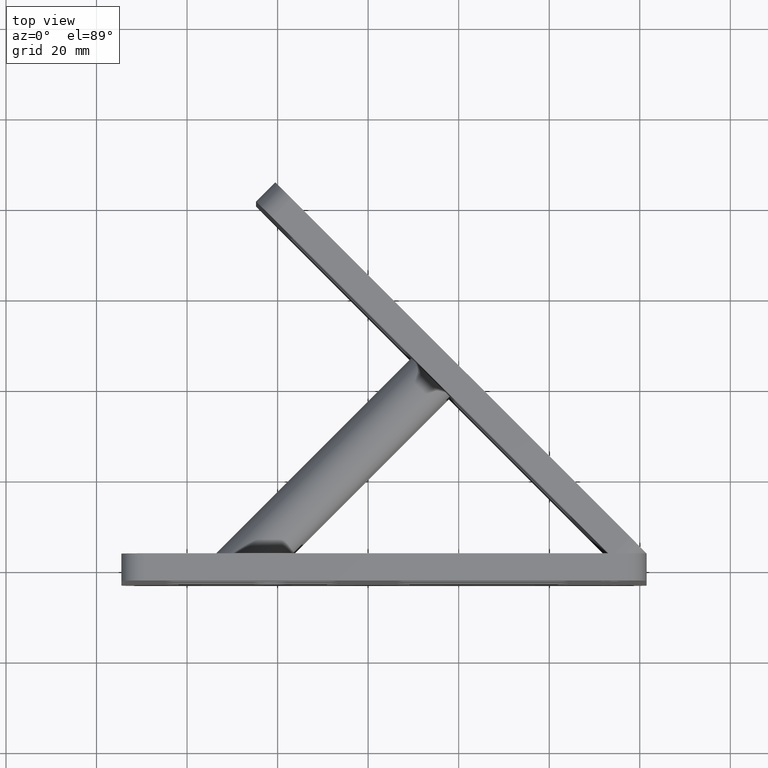
[diagram: clean part render]
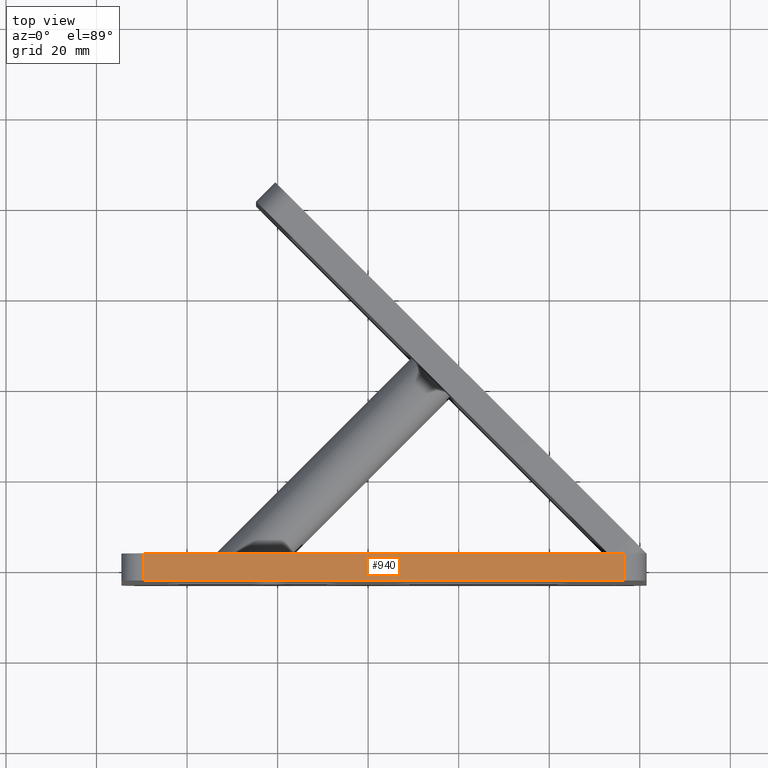
[diagram: same view with one face highlighted and labeled with its STEP entity id]
A machine part, top view. The second image highlights one B-rep face of the part: STEP entity #940.
In plain terms, the highlighted planar face has unit normal (0, 0, -1).
Its self-contained STEP definition (entity closure, byte-faithful):
#101 = LINE ( 'NONE', #4508, #5703 ) ;
#557 = VECTOR ( 'NONE', #4373, 1000.000000000000000 ) ;
#655 = EDGE_CURVE ( 'NONE', #4932, #5748, #6596, .T. ) ;
#658 = ORIENTED_EDGE ( 'NONE', *, *, #655, .F. ) ;
#791 = ORIENTED_EDGE ( 'NONE', *, *, #1923, .T. ) ;
#819 = DIRECTION ( 'NONE',  ( -0.0000000000000000000, -1.000000000000000000, -0.0000000000000000000 ) ) ;
#876 = CARTESIAN_POINT ( 'NONE',  ( 56.50000000000012100, 3.000000000000000000, 35.00000000000001400 ) ) ;
#940 = ADVANCED_FACE ( 'NONE', ( #2478 ), #7097, .F. ) ;
#1039 = CARTESIAN_POINT ( 'NONE',  ( -49.50000000000000000, -3.000000000000000000, 35.00000000000000700 ) ) ;
#1913 = CARTESIAN_POINT ( 'NONE',  ( -49.50000000000000000, 3.000000000000000000, 35.00000000000000700 ) ) ;
#1923 = EDGE_CURVE ( 'NONE', #2787, #4154, #5127, .T. ) ;
#1972 = ORIENTED_EDGE ( 'NONE', *, *, #3799, .T. ) ;
#2425 = CARTESIAN_POINT ( 'NONE',  ( 56.50000000000012100, -3.000000000000000000, 35.00000000000001400 ) ) ;
#2478 = FACE_OUTER_BOUND ( 'NONE', #4234, .T. ) ;
#2787 = VERTEX_POINT ( 'NONE', #4091 ) ;
#3124 = EDGE_CURVE ( 'NONE', #2787, #4932, #5123, .T. ) ;
#3247 = DIRECTION ( 'NONE',  ( 1.000000000000000000, 0.0000000000000000000, 6.546126324440774500E-017 ) ) ;
#3307 = CARTESIAN_POINT ( 'NONE',  ( -49.50000000000000000, 3.000000000000000000, 35.00000000000000700 ) ) ;
#3799 = EDGE_CURVE ( 'NONE', #4154, #5748, #101, .T. ) ;
#4091 = CARTESIAN_POINT ( 'NONE',  ( -49.50000000000000000, 3.000000000000000000, 35.00000000000000700 ) ) ;
#4154 = VERTEX_POINT ( 'NONE', #1039 ) ;
#4234 = EDGE_LOOP ( 'NONE', ( #1972, #658, #5394, #791 ) ) ;
#4373 = DIRECTION ( 'NONE',  ( -0.0000000000000000000, -1.000000000000000000, -0.0000000000000000000 ) ) ;
#4414 = DIRECTION ( 'NONE',  ( 6.546126324440774500E-017, 0.0000000000000000000, -1.000000000000000000 ) ) ;
#4508 = CARTESIAN_POINT ( 'NONE',  ( -49.50000000000000000, -3.000000000000000000, 35.00000000000000700 ) ) ;
#4932 = VERTEX_POINT ( 'NONE', #876 ) ;
#4996 = DIRECTION ( 'NONE',  ( -1.000000000000000000, 0.0000000000000000000, -6.546126324440774500E-017 ) ) ;
#5123 = LINE ( 'NONE', #3307, #5205 ) ;
#5127 = LINE ( 'NONE', #1913, #5216 ) ;
#5205 = VECTOR ( 'NONE', #6526, 1000.000000000000000 ) ;
#5216 = VECTOR ( 'NONE', #819, 1000.000000000000000 ) ;
#5394 = ORIENTED_EDGE ( 'NONE', *, *, #3124, .F. ) ;
#5703 = VECTOR ( 'NONE', #3247, 1000.000000000000000 ) ;
#5748 = VERTEX_POINT ( 'NONE', #2425 ) ;
#6526 = DIRECTION ( 'NONE',  ( 1.000000000000000000, 0.0000000000000000000, 6.546126324440774500E-017 ) ) ;
#6538 = AXIS2_PLACEMENT_3D ( 'NONE', #7140, #4414, #4996 ) ;
#6561 = CARTESIAN_POINT ( 'NONE',  ( 56.50000000000012100, 3.000000000000000000, 35.00000000000001400 ) ) ;
#6596 = LINE ( 'NONE', #6561, #557 ) ;
#7097 = PLANE ( 'NONE',  #6538 ) ;
#7140 = CARTESIAN_POINT ( 'NONE',  ( -49.50000000000000000, 3.000000000000000000, 35.00000000000000700 ) ) ;